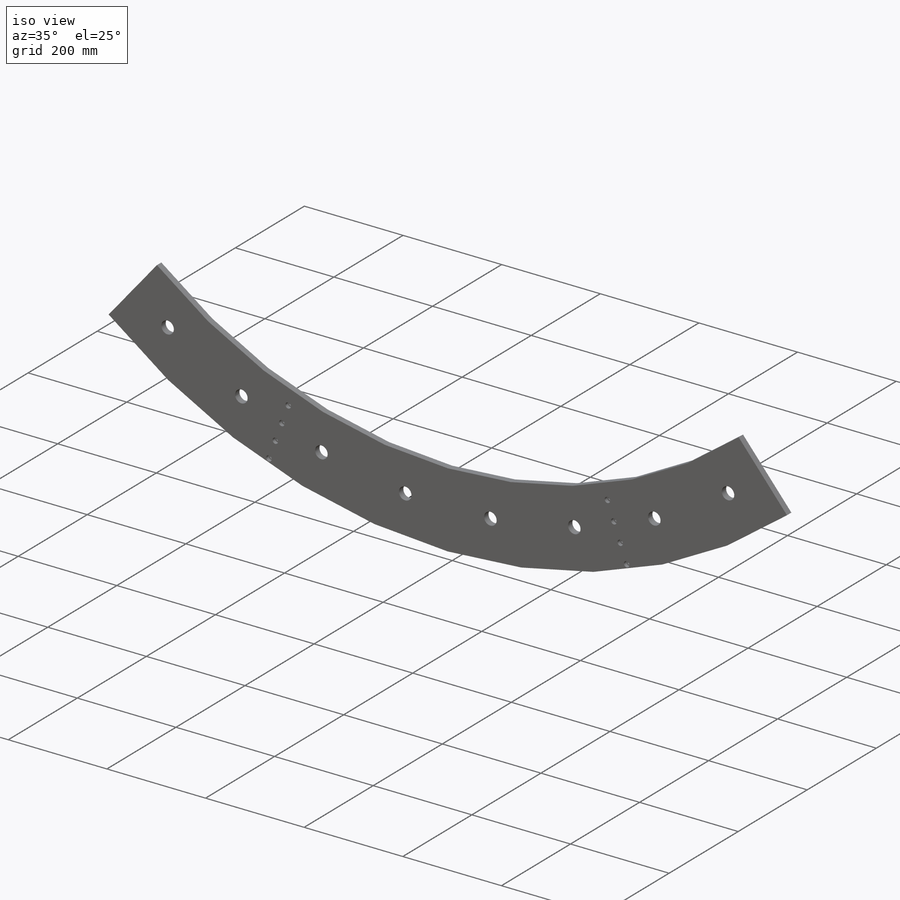
[diagram: iso view]
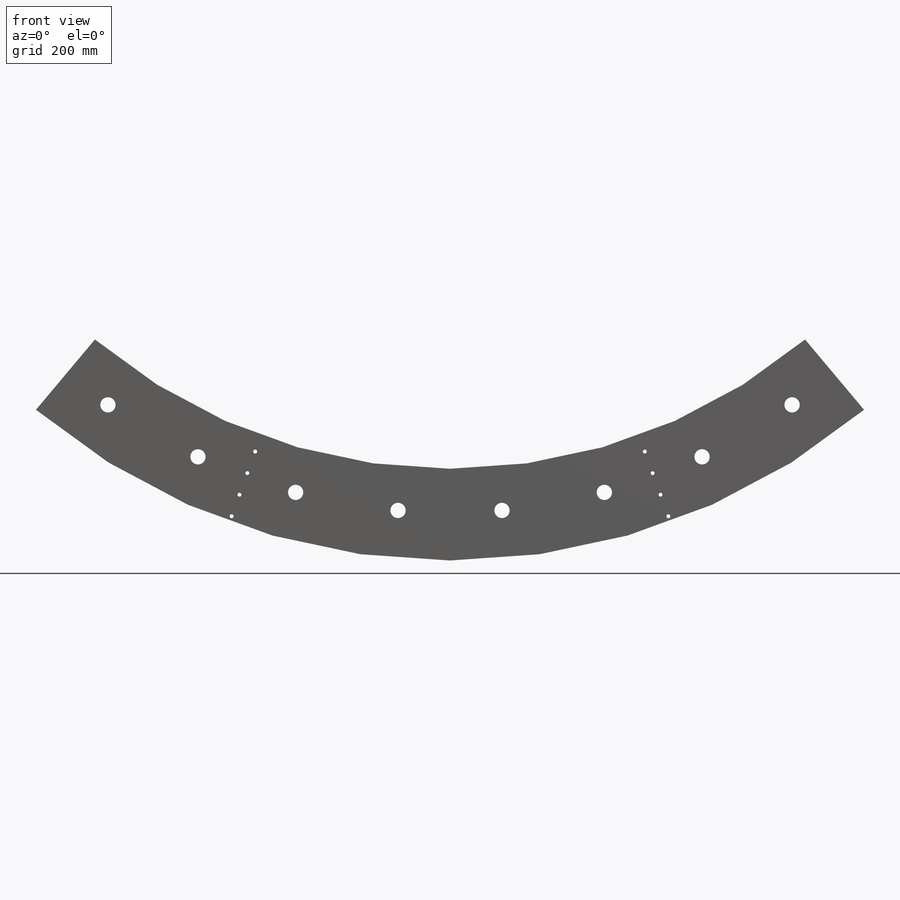
[diagram: front view]
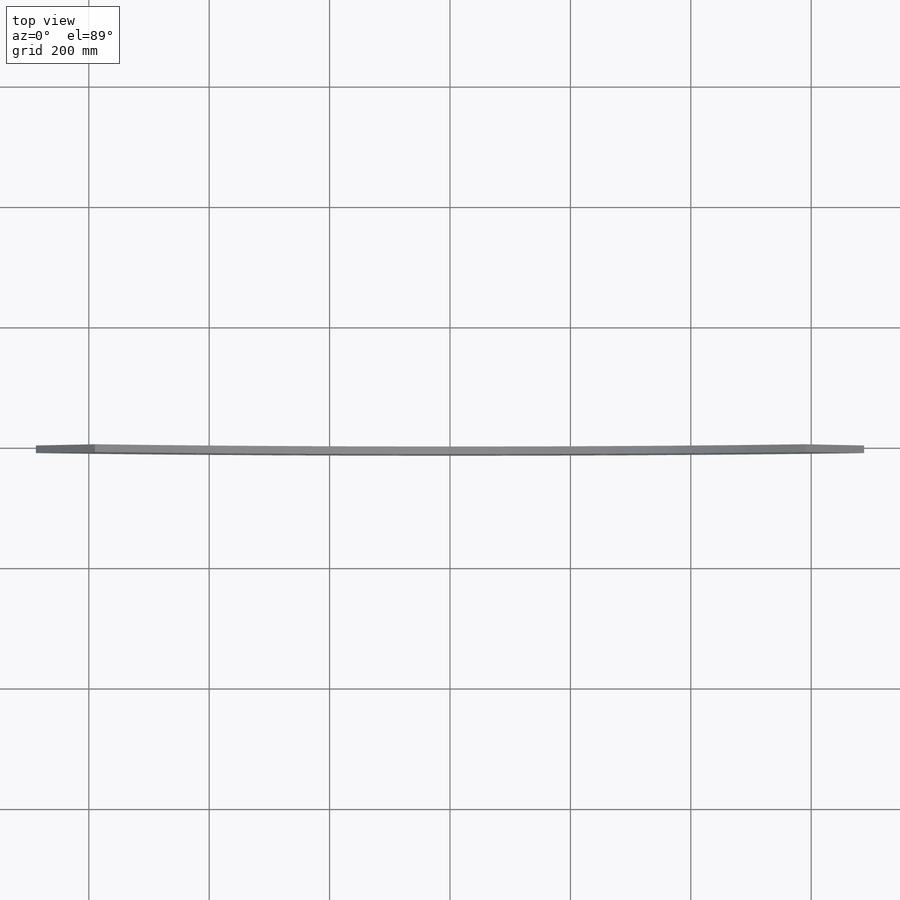
[diagram: top view]
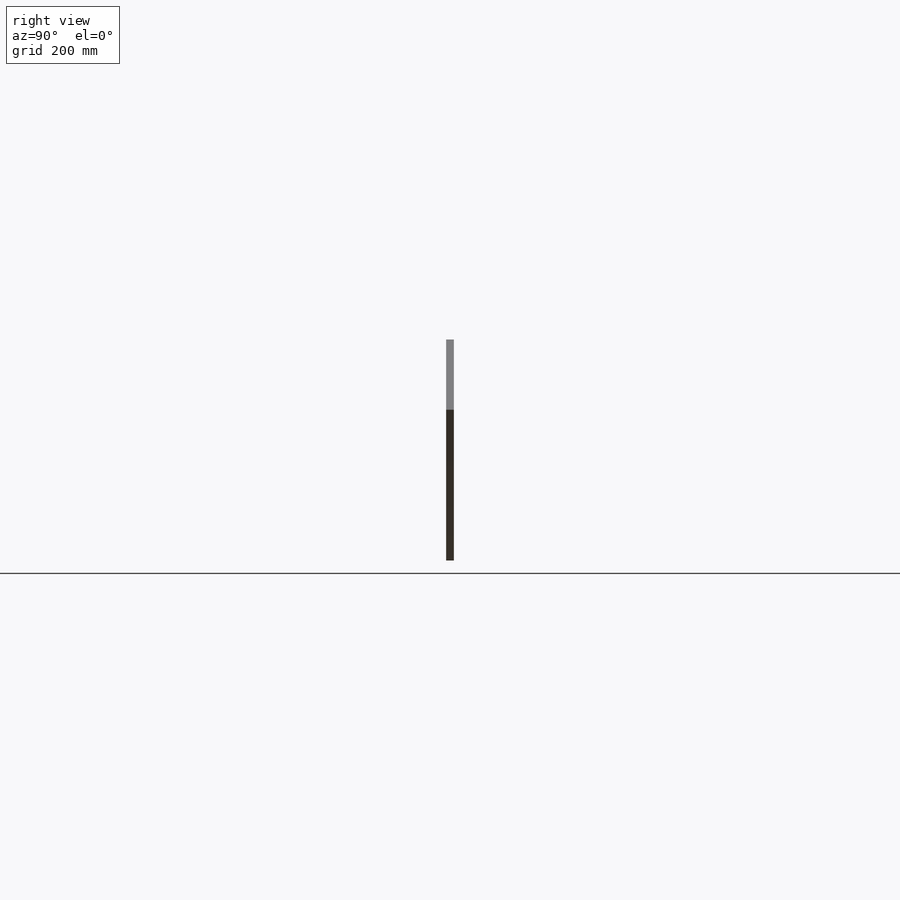
[diagram: right view]
SOLIDWORKS PART (.sldprt)
format: sldprt  version: not decoded by parser v0  size: 426,496 bytes
history: native  units: mm
features: sketch x5, hole x2, material x1, extrude x1 + 1 further entry (+11 scaffold rows collapsed)
feature tree (21):
  scaffold x11  (default folders/planes/origin — collapsed)
  material  "6061-T6 Al"
  "Origin"  ID=392984584
  sketch  "Sketch"  dims[c1.D5=3.048mm c1.D6=3.048mm c1.D7=~1.947748mm c2.D6=3.048mm c2.D7=~2.392707mm c2.D5=2.8448mm c3.D6=3.048mm c3.D7=3.048mm c3.D8=1.5875mm c3.D9=4.7625mm c3.D10=2.54mm c3.D12=3.048mm c3.D13=6.604mm c3.D16=1.5875mm c3.D19=~2.38125mm c4.D9=3.175mm c4.D19=3.048mm c4.D22=2.54mm c4.D23=5.4102mm c4.D14=2.54mm c4.D3=990.6mm c4.D4=990.6mm c5.D3=990.6mm c5.D1=990.6mm c5.D2=917.575mm c6.D1=~102.901114mm c6.D2=~79.998856mm c7.D1=46.228mm c7.D2=57.15mm c7.D3=~35.706034mm c7.D4=~31.234425mm c8.D3=40.64mm c8.D4=40.64mm c8.D6=3.81mm c8.D7=6.096mm c9.D6=3.81mm c9.D7=3.048mm c9.D5=3.81mm c10.D7=~49.253342mm c10.D8=~37.691316mm c11.D7=50.8mm c11.D8=40.64mm c11.D6=33.02mm c12.D7=35.56mm c12.D1=50.8mm c12.D4=45.72mm c12.D8=~4.213439mm c13.D8=45.0deg c13.D10=0.254mm c13.D12=6.096mm c13.D14=6.223mm c13.D15=1.778mm c13.D16=1.524mm c13.D17=1.524mm c13.D18=57.15mm c13.D19=~0.697452mm c13.D20=~41.386999mm c14.D19=~0.697452mm c14.D8=~34.56784mm c15.D8=45.0deg c15.D20=~36.155415mm c15.D21=2.159mm c15.D22=~4.15925mm c16.D21=2.159mm c16.D15=1.143mm c16.D12=3.556mm c16.D19=3.556mm c16.D20=46.482mm c17.D21=46.482mm c17.D12=3.81mm c17.D19=3.81mm c17.D24=0.381mm c17.D6=0.508mm c17.D11=1.143mm c17.D14=~3.950315mm c17.D8=135.0deg c17.D17=~3.592102mm c18.D8=~5.586589mm c19.D8=45.0deg c19.D14=~30.176994mm c20.D14=135.0deg c20.D17=~5.930302mm c20.D8=135.0deg c21.D14=~3.592102mm c21.D8=~2.435377mm c22.D8=45.0deg c22.D14=0.508mm c22.D6=0.508mm c22.D17=47.244mm c22.D1=571.5mm c22.D2=304.8mm c22.D3=279.4mm c22.D4=279.4mm c22.D5=19.05mm c23.D6=19.05mm c23.D5=19.05mm c24.D6=19.05mm c24.D5=19.05mm c25.D6=19.05mm c25.D5=19.05mm c26.D6=~34.655305mm c26.D5=~34.655305mm c27.D6=~34.655305mm c27.D5=~34.655305mm c28.D6=~34.655305mm c28.D5=~34.655305mm c29.D6=12.7mm c29.D5=12.7mm c30.D6=12.7mm c30.D5=12.7mm c30.D3=25.4mm c30.D4=~35.921024mm c31.D5=25.4mm c31.D3=38.1mm c31.D4=42.9895mm c32.D5=304.8mm c32.D6=279.4mm c32.D7=279.4mm c33.D6=279.4mm c33.D7=279.4mm c34.D6=279.4mm c34.D7=279.4mm c35.D6=279.4mm c35.D7=279.4mm c36.D6=279.4mm c36.D7=279.4mm c37.D6=279.4mm c37.D7=279.4mm c38.D6=279.4mm c38.D7=279.4mm c39.D6=279.4mm c39.D7=279.4mm c40.D6=279.4mm c40.D7=279.4mm c41.D6=279.4mm c41.D7=279.4mm c42.D6=279.4mm c42.D2=279.4mm c42.D5=~283.980633mm c43.D6=279.4mm c43.D2=42.9895mm c43.D5=38.1mm c43.D3=38.1mm c44.D5=38.1mm c44.D2=190.5mm c44.D4=~81.373519mm c45.D4=5.0deg c45.D5=~81.373519mm c46.D5=10.0deg c46.D6=72.39mm c46.D3=72.39mm c47.D3=35.0deg c47.D5=10.0deg c47.D6=~216.182205mm c48.D6=37.5deg c48.D7=152.4mm c48.D8=228.6mm c49.D6=~181.360574mm c50.D6=80.0deg c51.D6=0.508mm c51.D11=1.778mm c51.D14=5.334mm c51.D15=1.27mm c51.D22=0.254mm c51.D4=4.0]
  extrude  "Boss-Extrude1"  Depth=12.7mm
  hole  "1 (1) Diameter Hole1"  Diameter=25.4mm Depth=12.7mm
  sketch  "Sketch5"
  sketch  "Sketch4"  dims[hole-wizard template sketch: 60 standard entries collapsed; hole parameters kept: c18.Thru Hole Depth=12.7mm]
  hole  "CBORE for 1/4 Socket Head Cap Screw1"  Diameter=6.5278mm Depth=12.7mm
  sketch  "Sketch7"  dims[c1.D1=7.62mm c1.D2=7.62mm c2.D1=114.3mm c2.D2=25.4mm c3.D2=20.0deg c3.D3=1054.1mm c3.D4=1054.1mm c4.D3=946.15mm]
  sketch  "Sketch6"  dims[hole-wizard template sketch: 41 standard entries collapsed; hole parameters kept: c12.Thru Hole Dia.=6.5278mm c12.Thru Hole Depth=12.7mm c12.C'Bore Dia.=11.1125mm c12.C'Bore Depth=7.112mm]
decode coverage: 7 of 8 modeling features carry decoded parameters; 1 rows unclassified (native names shown)
note: ~ marks probable driven/reference dimensions
note: suppression state not decoded; provenance and decode notes live in map.json
